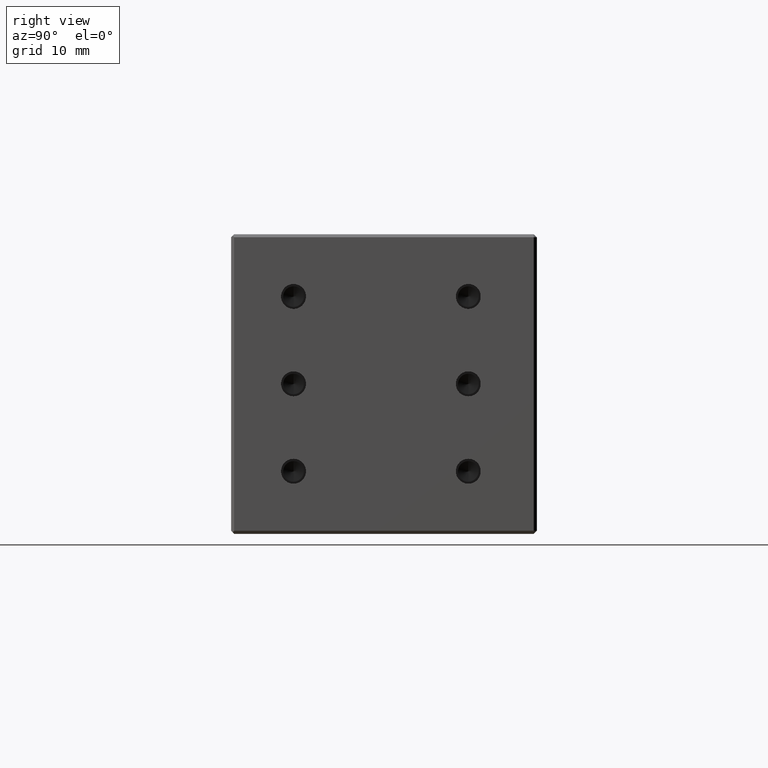
[diagram: clean part render]
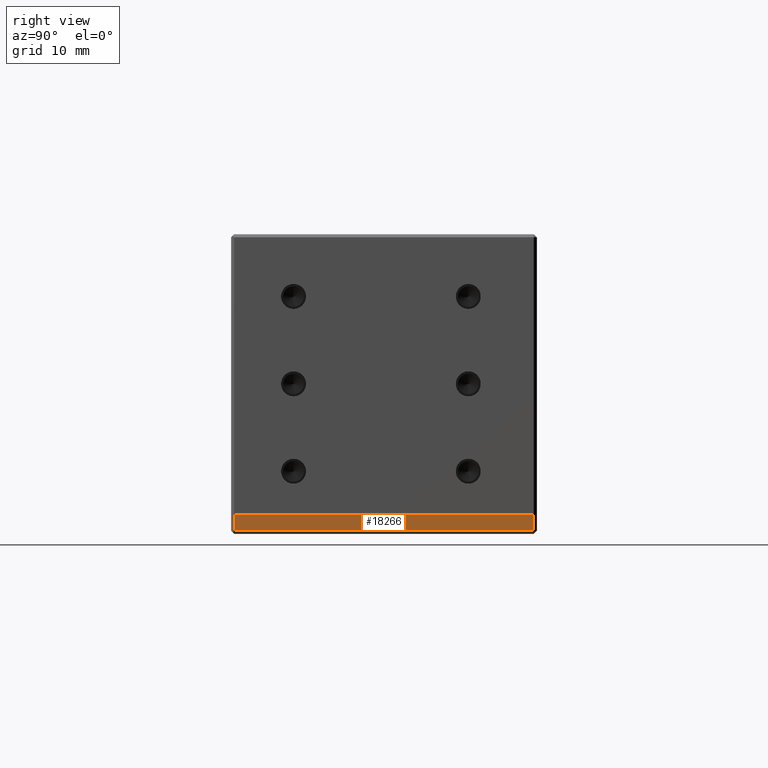
[diagram: same view with one face highlighted and labeled with its STEP entity id]
A machine part, right view. The second image highlights one B-rep face of the part: STEP entity #18266.
In plain terms, the highlighted planar face has unit normal (-1, 0, 0).
Its self-contained STEP definition (entity closure, byte-faithful):
#334 = CARTESIAN_POINT ( 'NONE',  ( 36.45909811851999600, -7.752652167981989500, -37.00000000000361000 ) ) ;
#910 = PLANE ( 'NONE',  #18940 ) ;
#1061 = VERTEX_POINT ( 'NONE', #2733 ) ;
#2114 = CARTESIAN_POINT ( 'NONE',  ( 36.45909811852001100, 16.24734783201899900, -37.00000000000000000 ) ) ;
#2259 = DIRECTION ( 'NONE',  ( -0.0000000000000000000, -0.0000000000000000000, -1.000000000000000000 ) ) ;
#2325 = VERTEX_POINT ( 'NONE', #18800 ) ;
#2569 = FACE_OUTER_BOUND ( 'NONE', #14984, .T. ) ;
#2733 = CARTESIAN_POINT ( 'NONE',  ( 36.45909811851829100, 40.24734783201774500, -39.50000000000515900 ) ) ;
#3084 = VECTOR ( 'NONE', #2259, 1000.000000000000000 ) ;
#3962 = EDGE_CURVE ( 'NONE', #1061, #2325, #27896, .T. ) ;
#4869 = CARTESIAN_POINT ( 'NONE',  ( 36.45909811852000400, 16.24734783201899900, -39.50000000000499500 ) ) ;
#5045 = EDGE_CURVE ( 'NONE', #2325, #6370, #5071, .T. ) ;
#5071 = LINE ( 'NONE', #20182, #10369 ) ;
#5717 = ORIENTED_EDGE ( 'NONE', *, *, #3962, .F. ) ;
#6370 = VERTEX_POINT ( 'NONE', #334 ) ;
#8527 = LINE ( 'NONE', #2114, #19801 ) ;
#9955 = CARTESIAN_POINT ( 'NONE',  ( 36.45909811852000400, -8.712652167982001900, -39.61370277042000500 ) ) ;
#10369 = VECTOR ( 'NONE', #22452, 1000.000000000000000 ) ;
#12192 = DIRECTION ( 'NONE',  ( 0.0000000000000000000, 0.0000000000000000000, 1.000000000000000000 ) ) ;
#12697 = CARTESIAN_POINT ( 'NONE',  ( 36.45909811852001100, 40.24734783201950000, -37.00000000000361700 ) ) ;
#13749 = DIRECTION ( 'NONE',  ( -0.0000000000000000000, -1.000000000000000000, -0.0000000000000000000 ) ) ;
#14984 = EDGE_LOOP ( 'NONE', ( #5717, #18348, #17201, #20889 ) ) ;
#16967 = EDGE_CURVE ( 'NONE', #23939, #1061, #26318, .T. ) ;
#17201 = ORIENTED_EDGE ( 'NONE', *, *, #22920, .F. ) ;
#17876 = DIRECTION ( 'NONE',  ( 0.0000000000000000000, 1.000000000000000000, 0.0000000000000000000 ) ) ;
#18266 = ADVANCED_FACE ( 'NONE', ( #2569 ), #910, .F. ) ;
#18348 = ORIENTED_EDGE ( 'NONE', *, *, #16967, .F. ) ;
#18800 = CARTESIAN_POINT ( 'NONE',  ( 36.45909811851969100, -7.752652167981654700, -39.50000000000311900 ) ) ;
#18940 = AXIS2_PLACEMENT_3D ( 'NONE', #9955, #25678, #12192 ) ;
#19801 = VECTOR ( 'NONE', #17876, 1000.000000000000000 ) ;
#20182 = CARTESIAN_POINT ( 'NONE',  ( 36.45909811851999600, -7.752652167981962000, -38.25000000000500200 ) ) ;
#20889 = ORIENTED_EDGE ( 'NONE', *, *, #5045, .F. ) ;
#22452 = DIRECTION ( 'NONE',  ( 0.0000000000000000000, 0.0000000000000000000, 1.000000000000000000 ) ) ;
#22920 = EDGE_CURVE ( 'NONE', #6370, #23939, #8527, .T. ) ;
#23939 = VERTEX_POINT ( 'NONE', #12697 ) ;
#25678 = DIRECTION ( 'NONE',  ( -1.000000000000000000, 0.0000000000000000000, 0.0000000000000000000 ) ) ;
#26318 = LINE ( 'NONE', #29047, #3084 ) ;
#27213 = VECTOR ( 'NONE', #13749, 1000.000000000000000 ) ;
#27896 = LINE ( 'NONE', #4869, #27213 ) ;
#29047 = CARTESIAN_POINT ( 'NONE',  ( 36.45909811851999600, 40.24734783201995500, -38.25000000000500200 ) ) ;